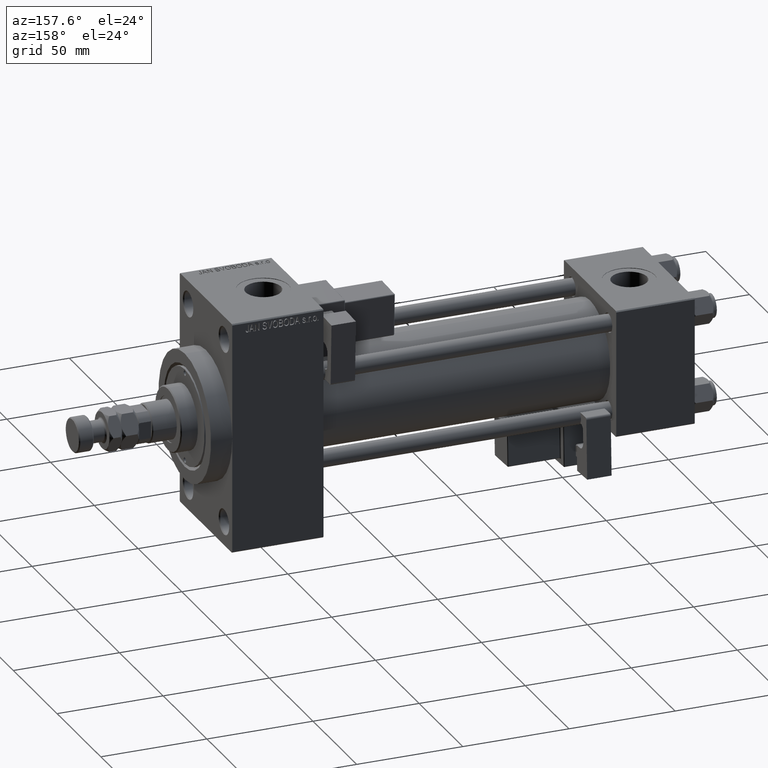
[diagram: clean part render]
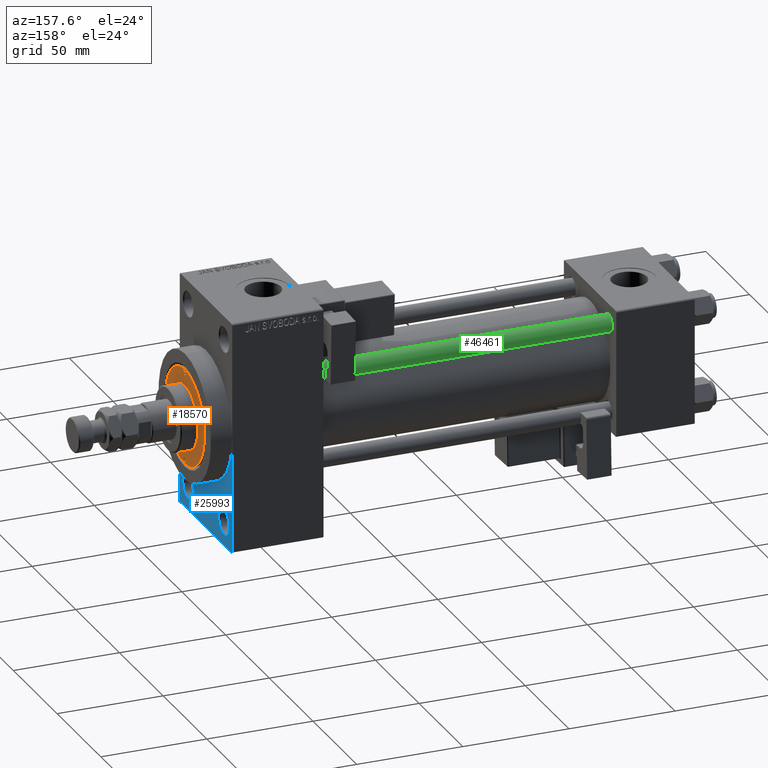
[diagram: same view with three faces highlighted in distinct colors, each labeled with its STEP entity id]
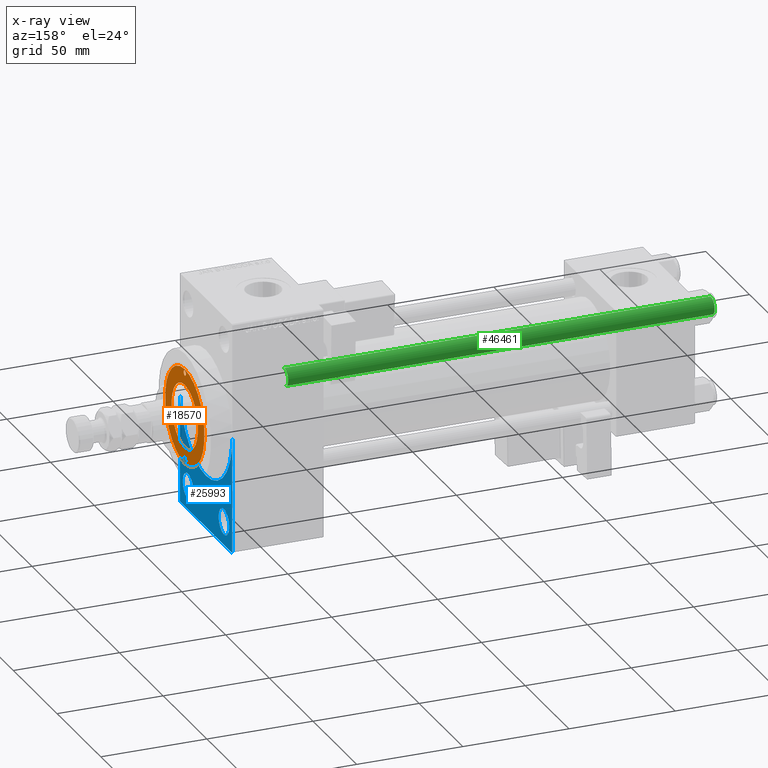
[diagram: x-ray of the same camera — body ghosted, the three highlighted faces saturated]
A machine part, auxiliary view with three faces highlighted in distinct colors.
The next image is the same camera in x-ray (body ghosted, the three faces saturated) — at least one of them is partly hidden behind the body in this view.
Their STEP definitions:

[orange] entity #18570 — the highlighted planar face has unit normal (1, -0, -0).
#572 = CARTESIAN_POINT ( 'NONE',  ( 0.000000000000000000, 0.000000000000000000, 43.25999999999999801 ) ) ;
#578 = CARTESIAN_POINT ( 'NONE',  ( 0.000000000000000000, 0.000000000000000000, 43.25999999999999801 ) ) ;
#963 = DIRECTION ( 'NONE',  ( 0.000000000000000000, 0.000000000000000000, 1.000000000000000000 ) ) ;
#1598 = AXIS2_PLACEMENT_3D ( 'NONE', #572, #9593, #12266 ) ;
#1728 = FACE_OUTER_BOUND ( 'NONE', #26611, .T. ) ;
#3561 = ORIENTED_EDGE ( 'NONE', *, *, #41046, .T. ) ;
#3814 = CIRCLE ( 'NONE', #7979, 22.50000000000000355 ) ;
#3826 = DIRECTION ( 'NONE',  ( 1.000000000000000000, 0.000000000000000000, 0.000000000000000000 ) ) ;
#6505 = EDGE_CURVE ( 'NONE', #20230, #9909, #43206, .T. ) ;
#7411 = VERTEX_POINT ( 'NONE', #33516 ) ;
#7979 = AXIS2_PLACEMENT_3D ( 'NONE', #43736, #40107, #19371 ) ;
#8231 = AXIS2_PLACEMENT_3D ( 'NONE', #40636, #963, #48173 ) ;
#8338 = CIRCLE ( 'NONE', #44048, 1.249999999999997558 ) ;
#8692 = EDGE_CURVE ( 'NONE', #7411, #23054, #3814, .T. ) ;
#9593 = DIRECTION ( 'NONE',  ( 0.000000000000000000, 0.000000000000000000, 1.000000000000000000 ) ) ;
#9602 = EDGE_LOOP ( 'NONE', ( #29616, #32862 ) ) ;
#9909 = VERTEX_POINT ( 'NONE', #18111 ) ;
#10962 = CIRCLE ( 'NONE', #25863, 22.50000000000000355 ) ;
#11265 = DIRECTION ( 'NONE',  ( -0.000000000000000000, -0.000000000000000000, 1.000000000000000000 ) ) ;
#11336 = CARTESIAN_POINT ( 'NONE',  ( -20.75000000000000000, 0.000000000000000000, 43.25999999999999801 ) ) ;
#11887 = CIRCLE ( 'NONE', #39177, 15.00000000000000000 ) ;
#11989 = ORIENTED_EDGE ( 'NONE', *, *, #50613, .F. ) ;
#12091 = VERTEX_POINT ( 'NONE', #38381 ) ;
#12266 = DIRECTION ( 'NONE',  ( 1.000000000000000000, 0.000000000000000000, 0.000000000000000000 ) ) ;
#14779 = DIRECTION ( 'NONE',  ( -0.000000000000000000, -0.000000000000000000, 1.000000000000000000 ) ) ;
#14887 = VERTEX_POINT ( 'NONE', #35554 ) ;
#15154 = CARTESIAN_POINT ( 'NONE',  ( -20.75000000000000000, 0.000000000000000000, 43.25999999999999801 ) ) ;
#18109 = ORIENTED_EDGE ( 'NONE', *, *, #36856, .F. ) ;
#18111 = CARTESIAN_POINT ( 'NONE',  ( -22.00000000000000000, 1.530808498934188612E-16, 43.25999999999999801 ) ) ;
#18138 = CARTESIAN_POINT ( 'NONE',  ( 20.75000000000000000, 0.000000000000000000, 43.25999999999999801 ) ) ;
#18174 = EDGE_CURVE ( 'NONE', #43868, #12091, #29768, .T. ) ;
#18548 = EDGE_CURVE ( 'NONE', #40887, #14887, #40506, .T. ) ;
#18570 = ADVANCED_FACE ( 'NONE', ( #44277, #32344, #48683, #1728 ), #28981, .T. ) ;
#19212 = ORIENTED_EDGE ( 'NONE', *, *, #18548, .F. ) ;
#19371 = DIRECTION ( 'NONE',  ( 1.000000000000000000, 0.000000000000000000, 0.000000000000000000 ) ) ;
#20230 = VERTEX_POINT ( 'NONE', #40979 ) ;
#21863 = DIRECTION ( 'NONE',  ( 0.000000000000000000, 0.000000000000000000, 1.000000000000000000 ) ) ;
#21967 = CARTESIAN_POINT ( 'NONE',  ( -22.50000000000000355, 0.000000000000000000, 43.25999999999999801 ) ) ;
#23054 = VERTEX_POINT ( 'NONE', #21967 ) ;
#23806 = CARTESIAN_POINT ( 'NONE',  ( 20.75000000000000000, 0.000000000000000000, 43.25999999999999801 ) ) ;
#24453 = DIRECTION ( 'NONE',  ( 1.000000000000000000, 0.000000000000000000, 0.000000000000000000 ) ) ;
#25863 = AXIS2_PLACEMENT_3D ( 'NONE', #578, #48308, #24453 ) ;
#26611 = EDGE_LOOP ( 'NONE', ( #3561, #49807 ) ) ;
#26749 = EDGE_LOOP ( 'NONE', ( #11989, #19212 ) ) ;
#27042 = CARTESIAN_POINT ( 'NONE',  ( -15.00000000000000000, 0.000000000000000000, 43.25999999999999801 ) ) ;
#27661 = DIRECTION ( 'NONE',  ( -0.000000000000000000, -0.000000000000000000, 1.000000000000000000 ) ) ;
#28981 = PLANE ( 'NONE',  #8231 ) ;
#29452 = CIRCLE ( 'NONE', #48485, 1.249999999999997558 ) ;
#29616 = ORIENTED_EDGE ( 'NONE', *, *, #18174, .F. ) ;
#29768 = CIRCLE ( 'NONE', #1598, 15.00000000000000000 ) ;
#30254 = EDGE_LOOP ( 'NONE', ( #30526, #18109 ) ) ;
#30526 = ORIENTED_EDGE ( 'NONE', *, *, #6505, .F. ) ;
#30959 = CARTESIAN_POINT ( 'NONE',  ( 19.50000000000000355, 1.530808498934188612E-16, 43.25999999999999801 ) ) ;
#32058 = DIRECTION ( 'NONE',  ( 1.000000000000000000, 0.000000000000000000, 0.000000000000000000 ) ) ;
#32344 = FACE_BOUND ( 'NONE', #26749, .T. ) ;
#32862 = ORIENTED_EDGE ( 'NONE', *, *, #42910, .F. ) ;
#33516 = CARTESIAN_POINT ( 'NONE',  ( 22.50000000000000355, 2.755455298081545172E-15, 43.25999999999999801 ) ) ;
#35554 = CARTESIAN_POINT ( 'NONE',  ( 22.00000000000000000, 0.000000000000000000, 43.25999999999999801 ) ) ;
#35718 = DIRECTION ( 'NONE',  ( -0.000000000000000000, -0.000000000000000000, 1.000000000000000000 ) ) ;
#36374 = AXIS2_PLACEMENT_3D ( 'NONE', #23806, #35718, #3826 ) ;
#36856 = EDGE_CURVE ( 'NONE', #9909, #20230, #8338, .T. ) ;
#38381 = CARTESIAN_POINT ( 'NONE',  ( 15.00000000000000000, 1.836970198721029589E-15, 43.25999999999999801 ) ) ;
#39177 = AXIS2_PLACEMENT_3D ( 'NONE', #49351, #21863, #41312 ) ;
#40107 = DIRECTION ( 'NONE',  ( 0.000000000000000000, 0.000000000000000000, 1.000000000000000000 ) ) ;
#40506 = CIRCLE ( 'NONE', #36374, 1.249999999999997558 ) ;
#40636 = CARTESIAN_POINT ( 'NONE',  ( 0.000000000000000000, 0.000000000000000000, 43.25999999999999801 ) ) ;
#40887 = VERTEX_POINT ( 'NONE', #30959 ) ;
#40979 = CARTESIAN_POINT ( 'NONE',  ( -19.50000000000000355, 0.000000000000000000, 43.25999999999999801 ) ) ;
#41046 = EDGE_CURVE ( 'NONE', #23054, #7411, #10962, .T. ) ;
#41312 = DIRECTION ( 'NONE',  ( 1.000000000000000000, 0.000000000000000000, 0.000000000000000000 ) ) ;
#42910 = EDGE_CURVE ( 'NONE', #12091, #43868, #11887, .T. ) ;
#43206 = CIRCLE ( 'NONE', #49839, 1.249999999999997558 ) ;
#43654 = DIRECTION ( 'NONE',  ( 1.000000000000000000, 0.000000000000000000, 0.000000000000000000 ) ) ;
#43736 = CARTESIAN_POINT ( 'NONE',  ( 0.000000000000000000, 0.000000000000000000, 43.25999999999999801 ) ) ;
#43868 = VERTEX_POINT ( 'NONE', #27042 ) ;
#44048 = AXIS2_PLACEMENT_3D ( 'NONE', #11336, #27661, #32058 ) ;
#44277 = FACE_BOUND ( 'NONE', #30254, .T. ) ;
#48173 = DIRECTION ( 'NONE',  ( 1.000000000000000000, 0.000000000000000000, -0.000000000000000000 ) ) ;
#48308 = DIRECTION ( 'NONE',  ( 0.000000000000000000, 0.000000000000000000, 1.000000000000000000 ) ) ;
#48485 = AXIS2_PLACEMENT_3D ( 'NONE', #18138, #14779, #50036 ) ;
#48683 = FACE_BOUND ( 'NONE', #9602, .T. ) ;
#49351 = CARTESIAN_POINT ( 'NONE',  ( 0.000000000000000000, 0.000000000000000000, 43.25999999999999801 ) ) ;
#49807 = ORIENTED_EDGE ( 'NONE', *, *, #8692, .T. ) ;
#49839 = AXIS2_PLACEMENT_3D ( 'NONE', #15154, #11265, #43654 ) ;
#50036 = DIRECTION ( 'NONE',  ( 1.000000000000000000, 0.000000000000000000, 0.000000000000000000 ) ) ;
#50613 = EDGE_CURVE ( 'NONE', #14887, #40887, #29452, .T. ) ;

[blue] entity #25993 — the highlighted planar face has unit normal (-1, 0, 0).
#71 = CIRCLE ( 'NONE', #10059, 6.000000000000116351 ) ;
#395 = ORIENTED_EDGE ( 'NONE', *, *, #6026, .F. ) ;
#692 = EDGE_LOOP ( 'NONE', ( #23225, #42729 ) ) ;
#825 = CARTESIAN_POINT ( 'NONE',  ( 218.0000000000000284, -20.50000000000000000, -37.49999999999987921 ) ) ;
#1751 = CIRCLE ( 'NONE', #32411, 30.00000000000000000 ) ;
#2991 = EDGE_CURVE ( 'NONE', #30518, #42310, #38907, .T. ) ;
#3277 = LINE ( 'NONE', #26377, #15962 ) ;
#3297 = AXIS2_PLACEMENT_3D ( 'NONE', #26583, #3482, #46285 ) ;
#3482 = DIRECTION ( 'NONE',  ( -1.000000000000000000, 0.000000000000000000, -0.000000000000000000 ) ) ;
#3655 = DIRECTION ( 'NONE',  ( -0.000000000000000000, 0.000000000000000000, 1.000000000000000000 ) ) ;
#4329 = ORIENTED_EDGE ( 'NONE', *, *, #33814, .T. ) ;
#4436 = CARTESIAN_POINT ( 'NONE',  ( 218.0000000000000284, 20.50000000000000000, -49.50000000000011369 ) ) ;
#4812 = ORIENTED_EDGE ( 'NONE', *, *, #40859, .T. ) ;
#4887 = DIRECTION ( 'NONE',  ( 1.000000000000000000, 0.000000000000000000, 0.000000000000000000 ) ) ;
#4920 = CARTESIAN_POINT ( 'NONE',  ( 218.0000000000000284, 29.50000000000002132, -54.49999999999999289 ) ) ;
#5004 = DIRECTION ( 'NONE',  ( -1.000000000000000000, 0.000000000000000000, -0.000000000000000000 ) ) ;
#5608 = CARTESIAN_POINT ( 'NONE',  ( 218.0000000000000284, 29.99999999999999645, -54.49999999999999289 ) ) ;
#5696 = EDGE_CURVE ( 'NONE', #26100, #28292, #71, .T. ) ;
#6026 = EDGE_CURVE ( 'NONE', #34033, #21191, #1751, .T. ) ;
#7941 = DIRECTION ( 'NONE',  ( 0.000000000000000000, 0.000000000000000000, 1.000000000000000000 ) ) ;
#8019 = DIRECTION ( 'NONE',  ( 0.000000000000000000, 0.000000000000000000, -1.000000000000000000 ) ) ;
#8073 = EDGE_CURVE ( 'NONE', #16197, #17815, #50930, .T. ) ;
#8710 = VERTEX_POINT ( 'NONE', #24554 ) ;
#8991 = DIRECTION ( 'NONE',  ( -1.000000000000000000, 0.000000000000000000, -0.000000000000000000 ) ) ;
#10059 = AXIS2_PLACEMENT_3D ( 'NONE', #40529, #5004, #22348 ) ;
#10332 = CARTESIAN_POINT ( 'NONE',  ( 218.0000000000000284, -29.49999999999997513, -54.50000000000000000 ) ) ;
#11754 = CARTESIAN_POINT ( 'NONE',  ( 218.0000000000000284, -30.00000000000000000, 54.50000000000000000 ) ) ;
#12724 = EDGE_LOOP ( 'NONE', ( #4812, #4329, #31592, #39678, #30003, #395, #13147 ) ) ;
#13147 = ORIENTED_EDGE ( 'NONE', *, *, #48362, .F. ) ;
#14836 = DIRECTION ( 'NONE',  ( -1.000000000000000000, 0.000000000000000000, -0.000000000000000000 ) ) ;
#15342 = AXIS2_PLACEMENT_3D ( 'NONE', #51234, #19861, #7941 ) ;
#15962 = VECTOR ( 'NONE', #30538, 1000.000000000000000 ) ;
#16197 = VERTEX_POINT ( 'NONE', #4920 ) ;
#16199 = CIRCLE ( 'NONE', #15342, 6.000000000000116351 ) ;
#17047 = VECTOR ( 'NONE', #23969, 1000.000000000000114 ) ;
#17815 = VERTEX_POINT ( 'NONE', #25270 ) ;
#17824 = DIRECTION ( 'NONE',  ( 1.000000000000000000, 0.000000000000000000, 0.000000000000000000 ) ) ;
#18093 = CARTESIAN_POINT ( 'NONE',  ( 218.0000000000000284, -29.49999999999997513, -54.50000000000000000 ) ) ;
#18714 = AXIS2_PLACEMENT_3D ( 'NONE', #42766, #4887, #8019 ) ;
#19090 = VECTOR ( 'NONE', #21228, 1000.000000000000000 ) ;
#19861 = DIRECTION ( 'NONE',  ( -1.000000000000000000, 0.000000000000000000, -0.000000000000000000 ) ) ;
#21191 = VERTEX_POINT ( 'NONE', #36635 ) ;
#21228 = DIRECTION ( 'NONE',  ( 0.000000000000000000, 0.7071067811865352493, -0.7071067811865597852 ) ) ;
#21784 = EDGE_CURVE ( 'NONE', #28292, #26100, #22402, .T. ) ;
#22348 = DIRECTION ( 'NONE',  ( 0.000000000000000000, 0.000000000000000000, 1.000000000000000000 ) ) ;
#22371 = CARTESIAN_POINT ( 'NONE',  ( 218.0000000000000284, 20.50000000000000000, -37.49999999999987921 ) ) ;
#22402 = CIRCLE ( 'NONE', #27393, 6.000000000000116351 ) ;
#23117 = CARTESIAN_POINT ( 'NONE',  ( 218.0000000000000284, 0.000000000000000000, 0.000000000000000000 ) ) ;
#23225 = ORIENTED_EDGE ( 'NONE', *, *, #5696, .T. ) ;
#23969 = DIRECTION ( 'NONE',  ( -0.000000000000000000, 0.7071067811865474617, 0.7071067811865474617 ) ) ;
#24554 = CARTESIAN_POINT ( 'NONE',  ( 218.0000000000000284, -30.00000000000000000, 0.000000000000000000 ) ) ;
#24642 = ORIENTED_EDGE ( 'NONE', *, *, #50976, .T. ) ;
#25107 = DIRECTION ( 'NONE',  ( 0.000000000000000000, 0.000000000000000000, -1.000000000000000000 ) ) ;
#25125 = LINE ( 'NONE', #18093, #19090 ) ;
#25270 = CARTESIAN_POINT ( 'NONE',  ( 218.0000000000000284, 29.99999999999999645, -54.00000000000002132 ) ) ;
#25993 = ADVANCED_FACE ( 'NONE', ( #27265, #38664, #43069 ), #46964, .F. ) ;
#26100 = VERTEX_POINT ( 'NONE', #4436 ) ;
#26377 = CARTESIAN_POINT ( 'NONE',  ( 218.0000000000000284, 29.99999999999999645, 54.49999999999999289 ) ) ;
#26583 = CARTESIAN_POINT ( 'NONE',  ( 218.0000000000000284, -20.50000000000000000, -43.50000000000000000 ) ) ;
#26636 = EDGE_CURVE ( 'NONE', #21191, #17815, #3277, .T. ) ;
#27265 = FACE_BOUND ( 'NONE', #29054, .T. ) ;
#27393 = AXIS2_PLACEMENT_3D ( 'NONE', #32822, #8991, #45018 ) ;
#28292 = VERTEX_POINT ( 'NONE', #22371 ) ;
#29054 = EDGE_LOOP ( 'NONE', ( #24642, #36519 ) ) ;
#29464 = CARTESIAN_POINT ( 'NONE',  ( 218.0000000000000284, 3.673940397442059178E-15, -30.00000000000000000 ) ) ;
#30003 = ORIENTED_EDGE ( 'NONE', *, *, #26636, .F. ) ;
#30518 = VERTEX_POINT ( 'NONE', #825 ) ;
#30538 = DIRECTION ( 'NONE',  ( 0.000000000000000000, 0.000000000000000000, -1.000000000000000000 ) ) ;
#31592 = ORIENTED_EDGE ( 'NONE', *, *, #46076, .F. ) ;
#32411 = AXIS2_PLACEMENT_3D ( 'NONE', #45313, #17824, #25107 ) ;
#32822 = CARTESIAN_POINT ( 'NONE',  ( 218.0000000000000284, 20.50000000000000000, -43.50000000000000000 ) ) ;
#33145 = CARTESIAN_POINT ( 'NONE',  ( 218.0000000000000284, -20.50000000000000000, -49.50000000000011369 ) ) ;
#33814 = EDGE_CURVE ( 'NONE', #50094, #49381, #25125, .T. ) ;
#34033 = VERTEX_POINT ( 'NONE', #29464 ) ;
#34853 = CARTESIAN_POINT ( 'NONE',  ( 218.0000000000000284, 29.99999999999999645, -54.00000000000002132 ) ) ;
#36519 = ORIENTED_EDGE ( 'NONE', *, *, #2991, .T. ) ;
#36635 = CARTESIAN_POINT ( 'NONE',  ( 218.0000000000000284, 30.00000000000000000, 0.000000000000000000 ) ) ;
#38380 = CARTESIAN_POINT ( 'NONE',  ( 218.0000000000000284, -30.00000000000000000, -53.99999999999995737 ) ) ;
#38461 = LINE ( 'NONE', #11754, #50703 ) ;
#38664 = FACE_BOUND ( 'NONE', #692, .T. ) ;
#38907 = CIRCLE ( 'NONE', #3297, 6.000000000000116351 ) ;
#39224 = DIRECTION ( 'NONE',  ( 0.000000000000000000, 0.000000000000000000, -1.000000000000000000 ) ) ;
#39678 = ORIENTED_EDGE ( 'NONE', *, *, #8073, .T. ) ;
#39976 = AXIS2_PLACEMENT_3D ( 'NONE', #23117, #14836, #3655 ) ;
#40529 = CARTESIAN_POINT ( 'NONE',  ( 218.0000000000000284, 20.50000000000000000, -43.50000000000000000 ) ) ;
#40859 = EDGE_CURVE ( 'NONE', #8710, #50094, #38461, .T. ) ;
#41082 = CIRCLE ( 'NONE', #18714, 30.00000000000000000 ) ;
#42310 = VERTEX_POINT ( 'NONE', #33145 ) ;
#42729 = ORIENTED_EDGE ( 'NONE', *, *, #21784, .T. ) ;
#42766 = CARTESIAN_POINT ( 'NONE',  ( 218.0000000000000284, 0.000000000000000000, 0.000000000000000000 ) ) ;
#43069 = FACE_OUTER_BOUND ( 'NONE', #12724, .T. ) ;
#43446 = VECTOR ( 'NONE', #48919, 1000.000000000000000 ) ;
#45018 = DIRECTION ( 'NONE',  ( 0.000000000000000000, 0.000000000000000000, 1.000000000000000000 ) ) ;
#45313 = CARTESIAN_POINT ( 'NONE',  ( 218.0000000000000284, 0.000000000000000000, 0.000000000000000000 ) ) ;
#46076 = EDGE_CURVE ( 'NONE', #16197, #49381, #49172, .T. ) ;
#46285 = DIRECTION ( 'NONE',  ( 0.000000000000000000, 0.000000000000000000, 1.000000000000000000 ) ) ;
#46964 = PLANE ( 'NONE',  #39976 ) ;
#48362 = EDGE_CURVE ( 'NONE', #8710, #34033, #41082, .T. ) ;
#48919 = DIRECTION ( 'NONE',  ( 0.000000000000000000, -1.000000000000000000, -1.156482317317871478E-16 ) ) ;
#49172 = LINE ( 'NONE', #5608, #43446 ) ;
#49381 = VERTEX_POINT ( 'NONE', #10332 ) ;
#50094 = VERTEX_POINT ( 'NONE', #38380 ) ;
#50703 = VECTOR ( 'NONE', #39224, 1000.000000000000000 ) ;
#50930 = LINE ( 'NONE', #34853, #17047 ) ;
#50976 = EDGE_CURVE ( 'NONE', #42310, #30518, #16199, .T. ) ;
#51234 = CARTESIAN_POINT ( 'NONE',  ( 218.0000000000000284, -20.50000000000000000, -43.50000000000000000 ) ) ;

[green] entity #46461 — the highlighted cylindrical surface (edge-blend (fillet) strip) has radius 4 mm, axis along (-1, -0, 0).
#251 = VERTEX_POINT ( 'NONE', #50330 ) ;
#1899 = DIRECTION ( 'NONE',  ( -0.000000000000000000, -0.000000000000000000, -1.000000000000000000 ) ) ;
#2399 = DIRECTION ( 'NONE',  ( 1.000000000000000000, 0.000000000000000000, 0.000000000000000000 ) ) ;
#3761 = CARTESIAN_POINT ( 'NONE',  ( 4.000000000000000000, 4.898587196589412829E-16, 202.0000000000000000 ) ) ;
#5406 = DIRECTION ( 'NONE',  ( -0.000000000000000000, -0.000000000000000000, 1.000000000000000000 ) ) ;
#5552 = DIRECTION ( 'NONE',  ( -1.000000000000000000, 0.000000000000000000, 0.000000000000000000 ) ) ;
#6663 = CIRCLE ( 'NONE', #35628, 4.000000000000000000 ) ;
#8694 = CYLINDRICAL_SURFACE ( 'NONE', #31908, 4.000000000000000000 ) ;
#9108 = CARTESIAN_POINT ( 'NONE',  ( 4.000000000000000000, 4.898587196589412829E-16, 0.5000000000000004441 ) ) ;
#10482 = VERTEX_POINT ( 'NONE', #26228 ) ;
#13446 = DIRECTION ( 'NONE',  ( 1.000000000000000000, 0.000000000000000000, 0.000000000000000000 ) ) ;
#15913 = CIRCLE ( 'NONE', #36593, 4.000000000000000000 ) ;
#15959 = DIRECTION ( 'NONE',  ( -0.000000000000000000, -0.000000000000000000, -1.000000000000000000 ) ) ;
#16660 = VECTOR ( 'NONE', #1899, 1000.000000000000000 ) ;
#16741 = EDGE_CURVE ( 'NONE', #251, #20191, #35647, .T. ) ;
#20191 = VERTEX_POINT ( 'NONE', #9108 ) ;
#21117 = FACE_OUTER_BOUND ( 'NONE', #44842, .T. ) ;
#21475 = CARTESIAN_POINT ( 'NONE',  ( 0.000000000000000000, 0.000000000000000000, 0.5000000000000004441 ) ) ;
#25254 = LINE ( 'NONE', #32518, #16660 ) ;
#26228 = CARTESIAN_POINT ( 'NONE',  ( -4.000000000000000000, 0.000000000000000000, 201.5000000000000000 ) ) ;
#28225 = EDGE_CURVE ( 'NONE', #10482, #251, #15913, .T. ) ;
#28734 = VERTEX_POINT ( 'NONE', #30863 ) ;
#29790 = ORIENTED_EDGE ( 'NONE', *, *, #16741, .T. ) ;
#30161 = DIRECTION ( 'NONE',  ( 0.000000000000000000, 0.000000000000000000, -1.000000000000000000 ) ) ;
#30863 = CARTESIAN_POINT ( 'NONE',  ( -4.000000000000000000, 0.000000000000000000, 0.5000000000000004441 ) ) ;
#31894 = ORIENTED_EDGE ( 'NONE', *, *, #28225, .T. ) ;
#31908 = AXIS2_PLACEMENT_3D ( 'NONE', #44977, #49115, #5552 ) ;
#32518 = CARTESIAN_POINT ( 'NONE',  ( -4.000000000000000000, 0.000000000000000000, 202.0000000000000000 ) ) ;
#32992 = VECTOR ( 'NONE', #15959, 1000.000000000000000 ) ;
#33370 = EDGE_CURVE ( 'NONE', #20191, #28734, #6663, .T. ) ;
#35460 = ORIENTED_EDGE ( 'NONE', *, *, #33370, .T. ) ;
#35628 = AXIS2_PLACEMENT_3D ( 'NONE', #21475, #5406, #13446 ) ;
#35647 = LINE ( 'NONE', #3761, #32992 ) ;
#36593 = AXIS2_PLACEMENT_3D ( 'NONE', #37914, #30161, #2399 ) ;
#37890 = EDGE_CURVE ( 'NONE', #10482, #28734, #25254, .T. ) ;
#37914 = CARTESIAN_POINT ( 'NONE',  ( 0.000000000000000000, 0.000000000000000000, 201.5000000000000000 ) ) ;
#44842 = EDGE_LOOP ( 'NONE', ( #31894, #29790, #35460, #51210 ) ) ;
#44977 = CARTESIAN_POINT ( 'NONE',  ( 0.000000000000000000, 0.000000000000000000, 202.0000000000000000 ) ) ;
#46461 = ADVANCED_FACE ( 'NONE', ( #21117 ), #8694, .T. ) ;
#49115 = DIRECTION ( 'NONE',  ( -0.000000000000000000, -0.000000000000000000, -1.000000000000000000 ) ) ;
#50330 = CARTESIAN_POINT ( 'NONE',  ( 4.000000000000000000, 4.898587196589412829E-16, 201.5000000000000000 ) ) ;
#51210 = ORIENTED_EDGE ( 'NONE', *, *, #37890, .F. ) ;